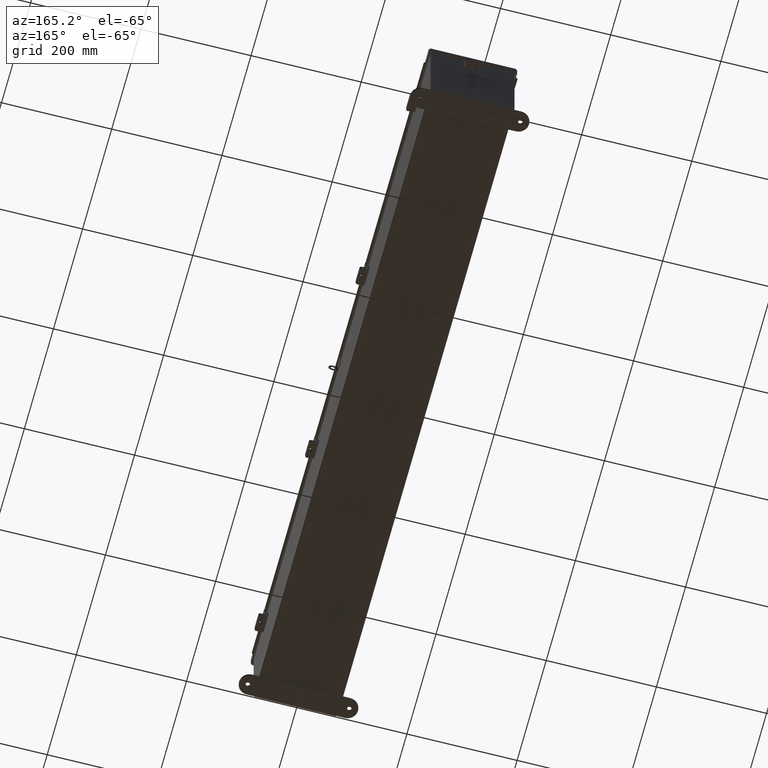
[diagram: clean part render]
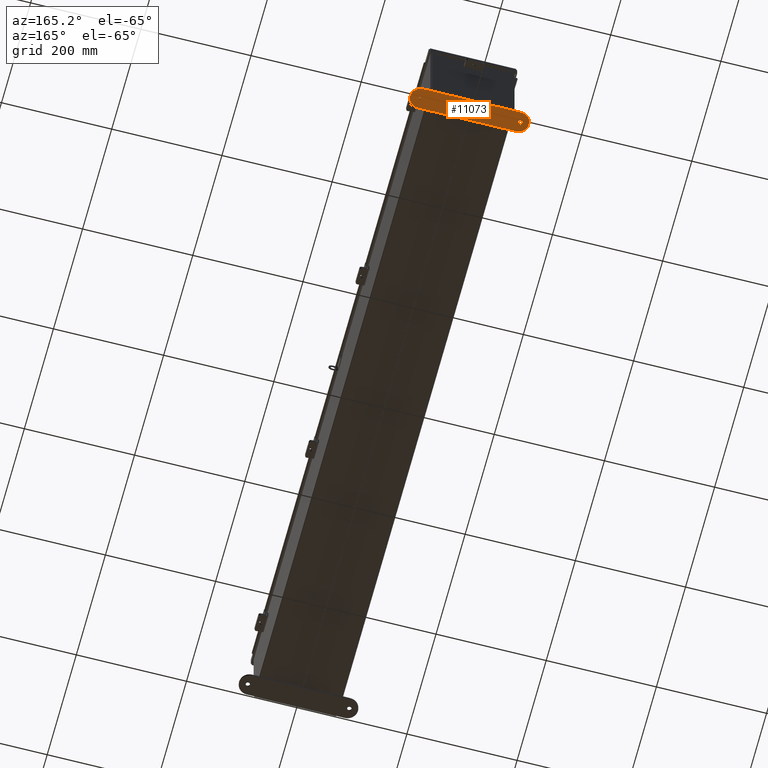
[diagram: same view with one face highlighted and labeled with its STEP entity id]
A machine part, auxiliary view. The second image highlights one B-rep face of the part: STEP entity #11073.
In plain terms, the highlighted planar face has unit normal (0, -0, 1).
Its self-contained STEP definition (entity closure, byte-faithful):
#57 = CIRCLE ( 'NONE', #13403, 0.7500000000000010000 ) ;
#843 = ORIENTED_EDGE ( 'NONE', *, *, #14982, .F. ) ;
#1089 = ORIENTED_EDGE ( 'NONE', *, *, #9348, .T. ) ;
#2409 = CARTESIAN_POINT ( 'NONE',  ( 4.250000000000000900, 0.4120940649496125900, 0.0000000000000000000 ) ) ;
#3251 = ORIENTED_EDGE ( 'NONE', *, *, #16527, .T. ) ;
#3397 = ORIENTED_EDGE ( 'NONE', *, *, #20416, .T. ) ;
#3492 = DIRECTION ( 'NONE',  ( -0.0000000000000000000, -0.0000000000000000000, -1.000000000000000000 ) ) ;
#4126 = EDGE_LOOP ( 'NONE', ( #3251, #6904, #34249, #31791, #15069 ) ) ;
#4382 = DIRECTION ( 'NONE',  ( -0.0000000000000000000, -0.0000000000000000000, -1.000000000000000000 ) ) ;
#5375 = AXIS2_PLACEMENT_3D ( 'NONE', #21301, #4382, #24123 ) ;
#5456 = CIRCLE ( 'NONE', #33000, 0.7500000000000010000 ) ;
#6561 = EDGE_LOOP ( 'NONE', ( #3397, #1089 ) ) ;
#6904 = ORIENTED_EDGE ( 'NONE', *, *, #9961, .T. ) ;
#7060 = EDGE_CURVE ( 'NONE', #21733, #26085, #10991, .T. ) ;
#7199 = VERTEX_POINT ( 'NONE', #24298 ) ;
#7650 = DIRECTION ( 'NONE',  ( -1.000000000000000000, 0.0000000000000000000, 0.0000000000000000000 ) ) ;
#8101 = LINE ( 'NONE', #25419, #15584 ) ;
#8491 = DIRECTION ( 'NONE',  ( 1.000000000000000000, -1.170791997284684700E-016, 0.0000000000000000000 ) ) ;
#9142 = CARTESIAN_POINT ( 'NONE',  ( -3.499999999999998700, 1.162094064949613000, 0.0000000000000000000 ) ) ;
#9348 = EDGE_CURVE ( 'NONE', #31651, #32120, #28812, .T. ) ;
#9810 = AXIS2_PLACEMENT_3D ( 'NONE', #13399, #33175, #16241 ) ;
#9909 = EDGE_LOOP ( 'NONE', ( #843, #21453 ) ) ;
#9961 = EDGE_CURVE ( 'NONE', #16977, #7199, #57, .T. ) ;
#10065 = CARTESIAN_POINT ( 'NONE',  ( -3.625000000000000400, 0.4120940649496087600, 0.0000000000000000000 ) ) ;
#10377 = AXIS2_PLACEMENT_3D ( 'NONE', #20410, #3492, #23224 ) ;
#10876 = VERTEX_POINT ( 'NONE', #15060 ) ;
#10991 = CIRCLE ( 'NONE', #30615, 0.1564999999999992800 ) ;
#11012 = CARTESIAN_POINT ( 'NONE',  ( 3.499999999999998700, -0.3379059350503883000, 0.0000000000000000000 ) ) ;
#11073 = ADVANCED_FACE ( 'NONE', ( #30438, #22940, #14527 ), #16037, .F. ) ;
#11984 = DIRECTION ( 'NONE',  ( -1.000000000000000000, -1.170791997284684700E-016, -0.0000000000000000000 ) ) ;
#12183 = DIRECTION ( 'NONE',  ( 0.0000000000000000000, 0.0000000000000000000, 1.000000000000000000 ) ) ;
#12839 = CARTESIAN_POINT ( 'NONE',  ( 3.500000000000000000, 0.4120940649496125900, 0.0000000000000000000 ) ) ;
#12896 = DIRECTION ( 'NONE',  ( 1.000000000000000000, 0.0000000000000000000, 0.0000000000000000000 ) ) ;
#13399 = CARTESIAN_POINT ( 'NONE',  ( -3.499999999999998700, 0.4120940649496127000, 0.0000000000000000000 ) ) ;
#13403 = AXIS2_PLACEMENT_3D ( 'NONE', #12839, #32602, #15665 ) ;
#14287 = CIRCLE ( 'NONE', #9810, 0.7499999999999998900 ) ;
#14527 = FACE_BOUND ( 'NONE', #6561, .T. ) ;
#14530 = CARTESIAN_POINT ( 'NONE',  ( 3.500000000000000000, 0.4120940649496125900, 0.0000000000000000000 ) ) ;
#14982 = EDGE_CURVE ( 'NONE', #26085, #21733, #20161, .T. ) ;
#15060 = CARTESIAN_POINT ( 'NONE',  ( -3.499999999999998700, -0.3379059350503874600, 0.0000000000000000000 ) ) ;
#15069 = ORIENTED_EDGE ( 'NONE', *, *, #16434, .T. ) ;
#15584 = VECTOR ( 'NONE', #8491, 39.37007874015748100 ) ;
#15665 = DIRECTION ( 'NONE',  ( -1.000000000000000000, 0.0000000000000000000, 0.0000000000000000000 ) ) ;
#15758 = VERTEX_POINT ( 'NONE', #11012 ) ;
#16037 = PLANE ( 'NONE',  #25767 ) ;
#16241 = DIRECTION ( 'NONE',  ( 1.000000000000000000, 0.0000000000000000000, 0.0000000000000000000 ) ) ;
#16434 = EDGE_CURVE ( 'NONE', #10876, #15758, #8101, .T. ) ;
#16527 = EDGE_CURVE ( 'NONE', #15758, #16977, #5456, .T. ) ;
#16977 = VERTEX_POINT ( 'NONE', #2409 ) ;
#17370 = DIRECTION ( 'NONE',  ( -1.000000000000000000, 0.0000000000000000000, 0.0000000000000000000 ) ) ;
#18914 = CARTESIAN_POINT ( 'NONE',  ( 3.500000000000000000, 0.4120940649496125900, 0.0000000000000000000 ) ) ;
#19132 = LINE ( 'NONE', #9142, #27511 ) ;
#20161 = CIRCLE ( 'NONE', #27250, 0.1564999999999992800 ) ;
#20357 = CARTESIAN_POINT ( 'NONE',  ( 3.781499999999999400, 0.4120940649496087600, 0.0000000000000000000 ) ) ;
#20410 = CARTESIAN_POINT ( 'NONE',  ( 3.625000000000000400, 0.4120940649496087600, 0.0000000000000000000 ) ) ;
#20416 = EDGE_CURVE ( 'NONE', #32120, #31651, #26007, .T. ) ;
#21295 = CARTESIAN_POINT ( 'NONE',  ( -3.781499999999999400, 0.4120940649496087600, 0.0000000000000000000 ) ) ;
#21301 = CARTESIAN_POINT ( 'NONE',  ( 3.625000000000000400, 0.4120940649496087600, 0.0000000000000000000 ) ) ;
#21453 = ORIENTED_EDGE ( 'NONE', *, *, #7060, .F. ) ;
#21733 = VERTEX_POINT ( 'NONE', #21295 ) ;
#22940 = FACE_BOUND ( 'NONE', #9909, .T. ) ;
#23224 = DIRECTION ( 'NONE',  ( -1.000000000000000000, 0.0000000000000000000, 0.0000000000000000000 ) ) ;
#23943 = EDGE_CURVE ( 'NONE', #34318, #10876, #14287, .T. ) ;
#24123 = DIRECTION ( 'NONE',  ( -1.000000000000000000, 0.0000000000000000000, 0.0000000000000000000 ) ) ;
#24298 = CARTESIAN_POINT ( 'NONE',  ( 3.499999999999998700, 1.162094064949613600, 0.0000000000000000000 ) ) ;
#24581 = DIRECTION ( 'NONE',  ( -0.0000000000000000000, 0.0000000000000000000, -1.000000000000000000 ) ) ;
#25419 = CARTESIAN_POINT ( 'NONE',  ( -3.499999999999998700, -0.3379059350503874600, 0.0000000000000000000 ) ) ;
#25767 = AXIS2_PLACEMENT_3D ( 'NONE', #18914, #24581, #7650 ) ;
#26007 = CIRCLE ( 'NONE', #10377, 0.1564999999999992800 ) ;
#26085 = VERTEX_POINT ( 'NONE', #34325 ) ;
#27250 = AXIS2_PLACEMENT_3D ( 'NONE', #10065, #29800, #12896 ) ;
#27511 = VECTOR ( 'NONE', #11984, 39.37007874015748100 ) ;
#28812 = CIRCLE ( 'NONE', #5375, 0.1564999999999992800 ) ;
#29122 = CARTESIAN_POINT ( 'NONE',  ( -3.625000000000000400, 0.4120940649496087600, 0.0000000000000000000 ) ) ;
#29800 = DIRECTION ( 'NONE',  ( 0.0000000000000000000, 0.0000000000000000000, 1.000000000000000000 ) ) ;
#30438 = FACE_OUTER_BOUND ( 'NONE', #4126, .T. ) ;
#30615 = AXIS2_PLACEMENT_3D ( 'NONE', #29122, #12183, #31944 ) ;
#31472 = EDGE_CURVE ( 'NONE', #7199, #34318, #19132, .T. ) ;
#31651 = VERTEX_POINT ( 'NONE', #32206 ) ;
#31791 = ORIENTED_EDGE ( 'NONE', *, *, #23943, .T. ) ;
#31944 = DIRECTION ( 'NONE',  ( 1.000000000000000000, 0.0000000000000000000, 0.0000000000000000000 ) ) ;
#32120 = VERTEX_POINT ( 'NONE', #20357 ) ;
#32206 = CARTESIAN_POINT ( 'NONE',  ( 3.468500000000001000, 0.4120940649496087600, 0.0000000000000000000 ) ) ;
#32602 = DIRECTION ( 'NONE',  ( 0.0000000000000000000, 0.0000000000000000000, 1.000000000000000000 ) ) ;
#33000 = AXIS2_PLACEMENT_3D ( 'NONE', #14530, #34274, #17370 ) ;
#33175 = DIRECTION ( 'NONE',  ( 0.0000000000000000000, 0.0000000000000000000, 1.000000000000000000 ) ) ;
#34249 = ORIENTED_EDGE ( 'NONE', *, *, #31472, .T. ) ;
#34274 = DIRECTION ( 'NONE',  ( 0.0000000000000000000, 0.0000000000000000000, 1.000000000000000000 ) ) ;
#34318 = VERTEX_POINT ( 'NONE', #34501 ) ;
#34325 = CARTESIAN_POINT ( 'NONE',  ( -3.468500000000001000, 0.4120940649496087600, 0.0000000000000000000 ) ) ;
#34501 = CARTESIAN_POINT ( 'NONE',  ( -3.499999999999998700, 1.162094064949613000, 0.0000000000000000000 ) ) ;